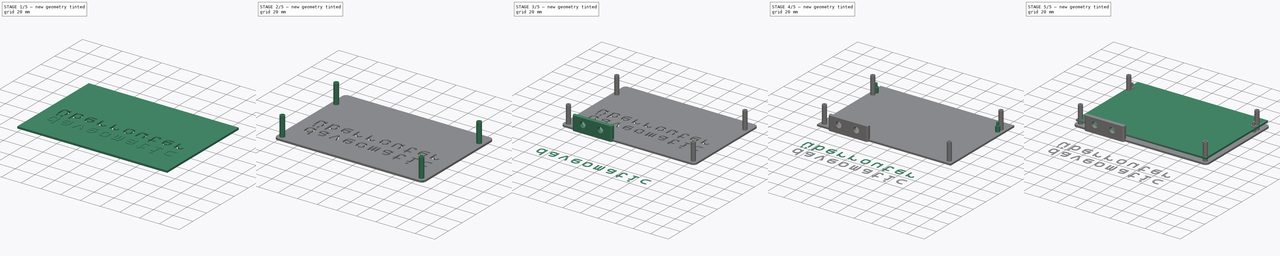
[diagram: build sequence overview — one tinted view per stage of 5, left to right]
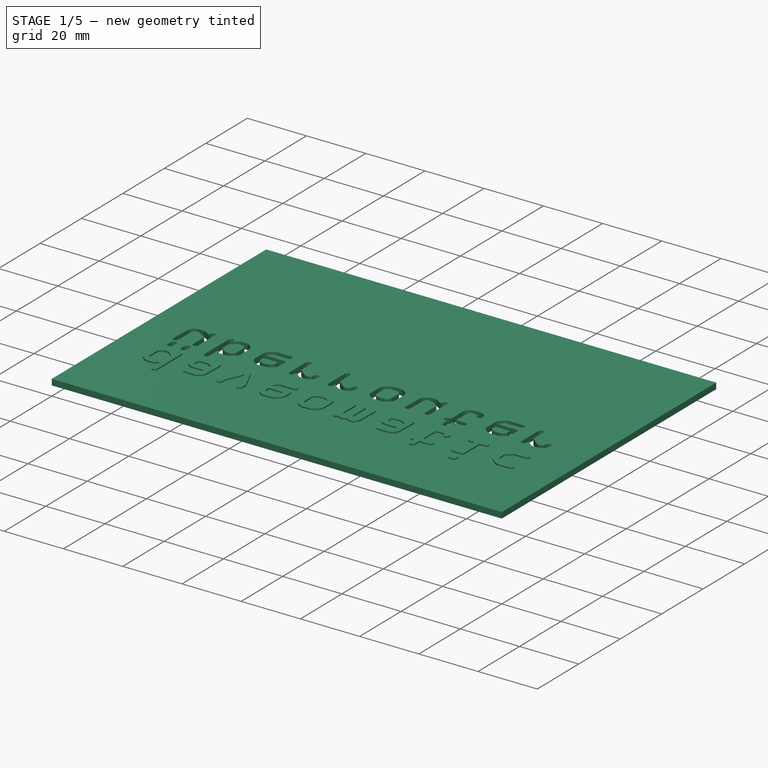
[diagram: stage 1 of 5 — iso view after this stage's code; geometry added in this stage tinted green]
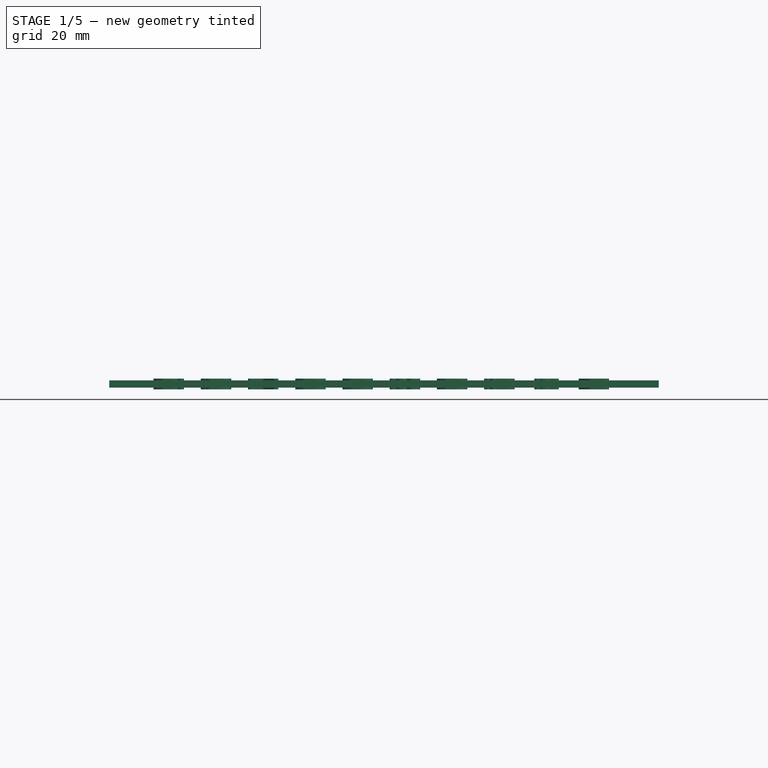
[diagram: stage 1 of 5 — front view after this stage's code; geometry added in this stage tinted green]
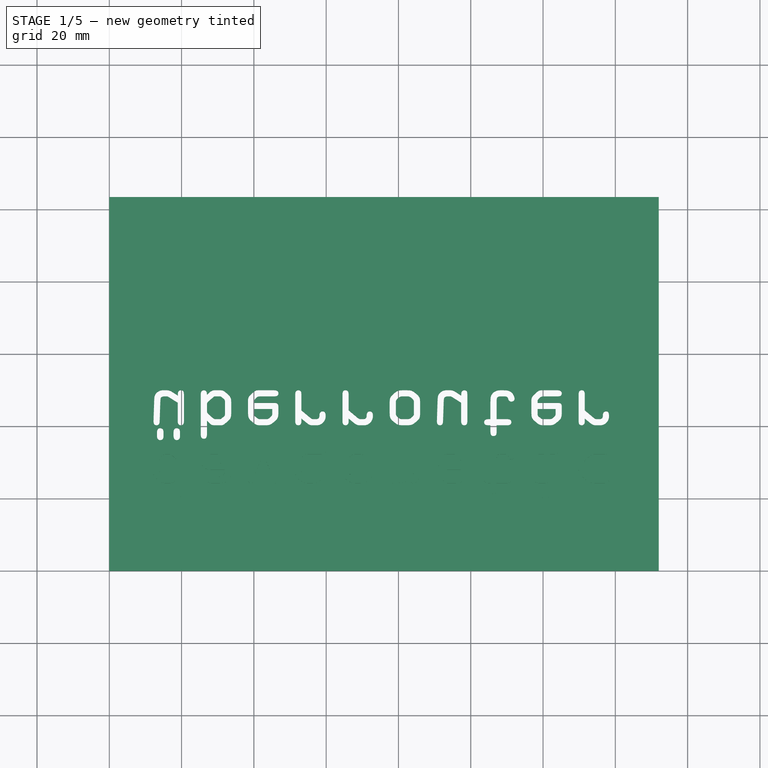
[diagram: stage 1 of 5 — top view after this stage's code; geometry added in this stage tinted green]
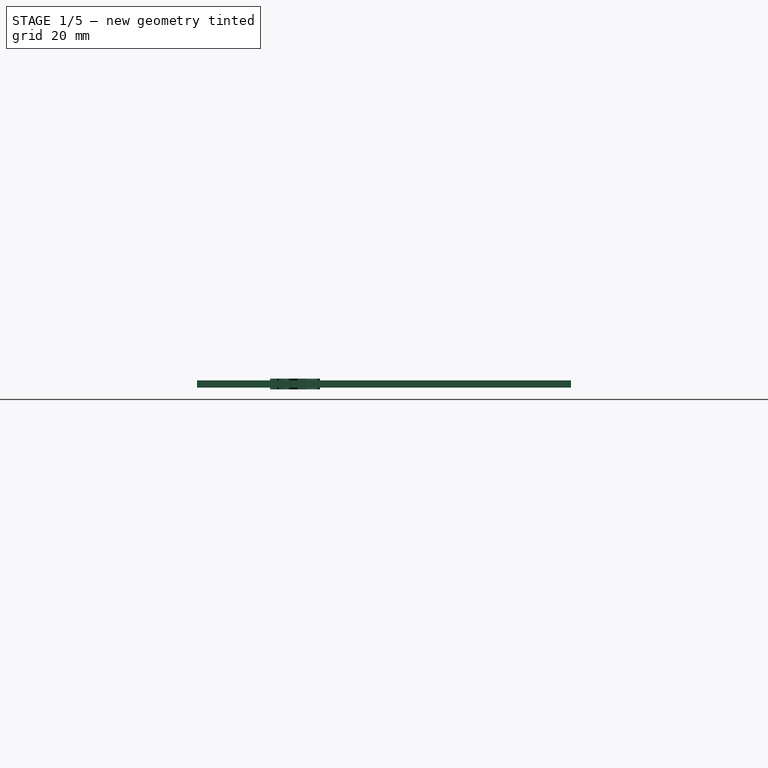
[diagram: stage 1 of 5 — right view after this stage's code; geometry added in this stage tinted green]
FCSTD DOCUMENT  (FreeCAD 0.16R6706 (Git))
Label: router
License: All rights reserved
LicenseURL: http://en.wikipedia.org/wiki/All_rights_reserved
objects: Sketcher::SketchObject×7, PartDesign::Pad×6, Part::Box×4, Part::Part2DObjectPython×4, PartDesign::Pocket×3, PartDesign::Fillet×3, App::DocumentObjectGroup×3, Part::Extrusion×3, Part::Cut×2
note: 41 computed .brp shape members not serialized (recipe doc carries the construction recipe); baked Part::Feature solids carry a one-line shape summary decoded from their .brp

FEATURE [Part::Box] Box002  label="top-"
  Height = 2
  Length = 152
  Width = 103.45
FEATURE [Part::Part2DObjectPython] ShapeString002  label="daveomatic001"  # Draft 2D object (typed FeaturePython)
  FontFile = /Volumes/storage<userpath>/Desktop/OCRAStd.otf
  Placement = pos=(10,34,2.5) rot=(1,0,0;3.14159rad)
  Size = 7
  String = daveomatic
  Tracking = 0
FEATURE [Part::Part2DObjectPython] ShapeString003  label="uber router001"  # Draft 2D object (typed FeaturePython)
  FontFile = /Volumes/storage<userpath>/Desktop/OCRAStd.otf
  Placement = pos=(10,50,2.5) rot=(1,0,0;3.14159rad)
  Size = 7
  String = überrouter
  Tracking = 0
FEATURE [PartDesign::Pad] Pad005  label="uberpad"
  Length = 3
  Length2 = 100
  Placement = pos=(10,50,2.5) rot=(1,0,0;3.14159rad)
  Sketch = -> ShapeString003
  Type = 0
FEATURE [PartDesign::Pad] Pad006  label="davepad"
  Length = 3
  Length2 = 100
  Placement = pos=(10,34,2.5) rot=(1,0,0;3.14159rad)
  Sketch = -> ShapeString002
  Type = 0
FEATURE [App::DocumentObjectGroup] Group002  label="WiFi block"
  Group = -> [Box003,Pocket003,Fillet002]
FEATURE [Part::Cut] Cut
  Base = -> Box002
  Tool = -> Pad005
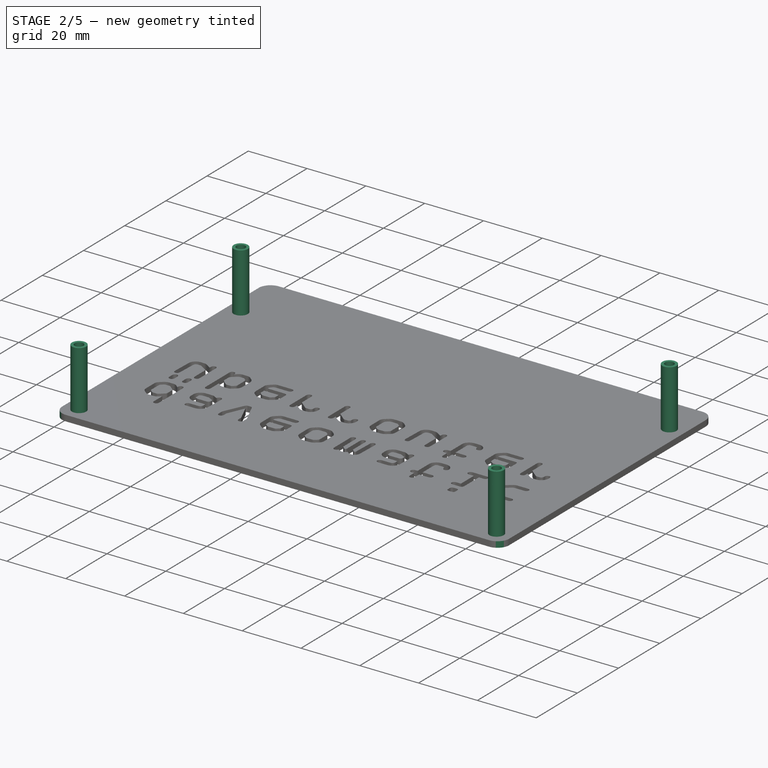
[diagram: stage 2 of 5 — iso view after this stage's code; geometry added in this stage tinted green]
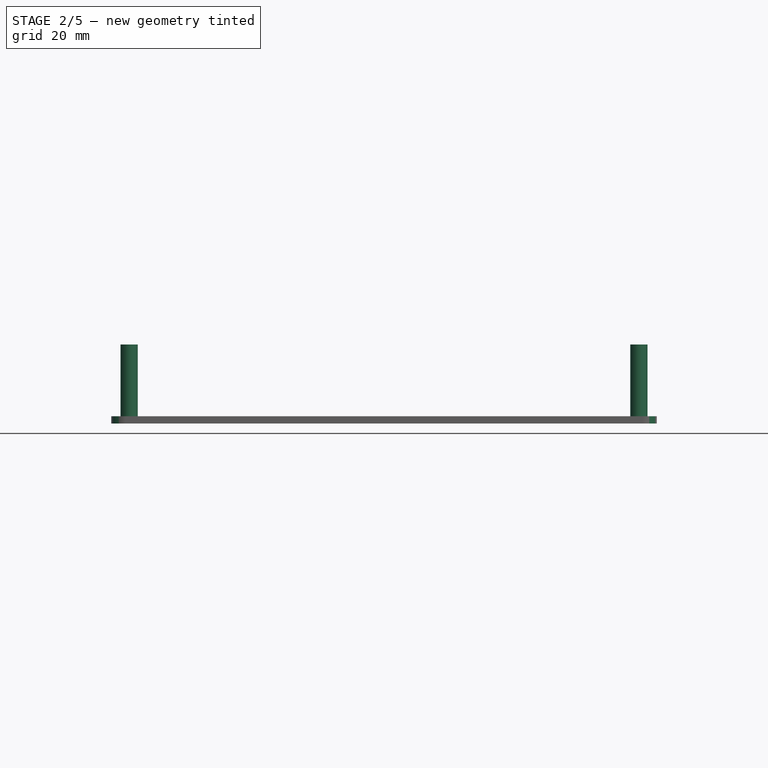
[diagram: stage 2 of 5 — front view after this stage's code; geometry added in this stage tinted green]
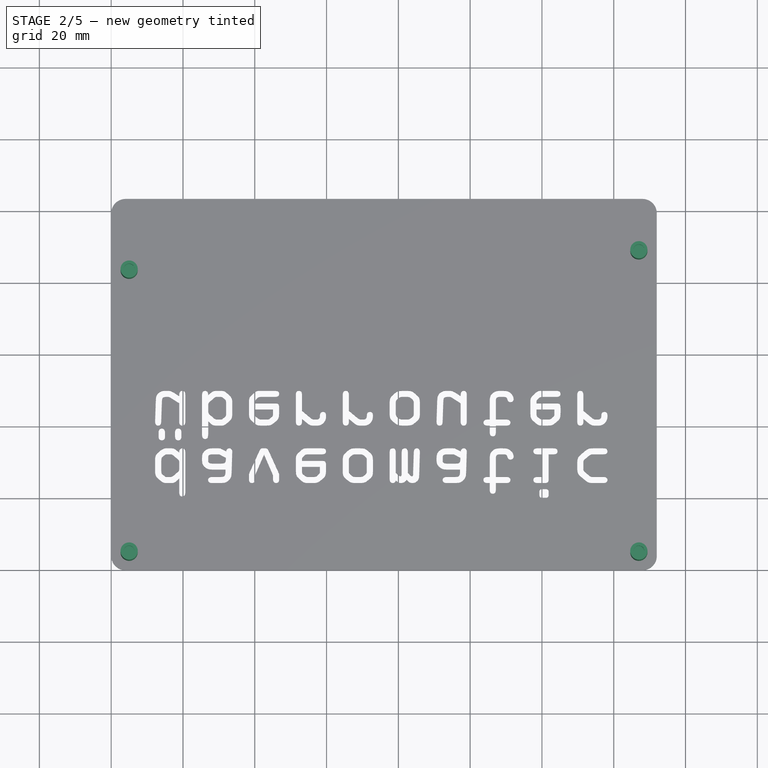
[diagram: stage 2 of 5 — top view after this stage's code; geometry added in this stage tinted green]
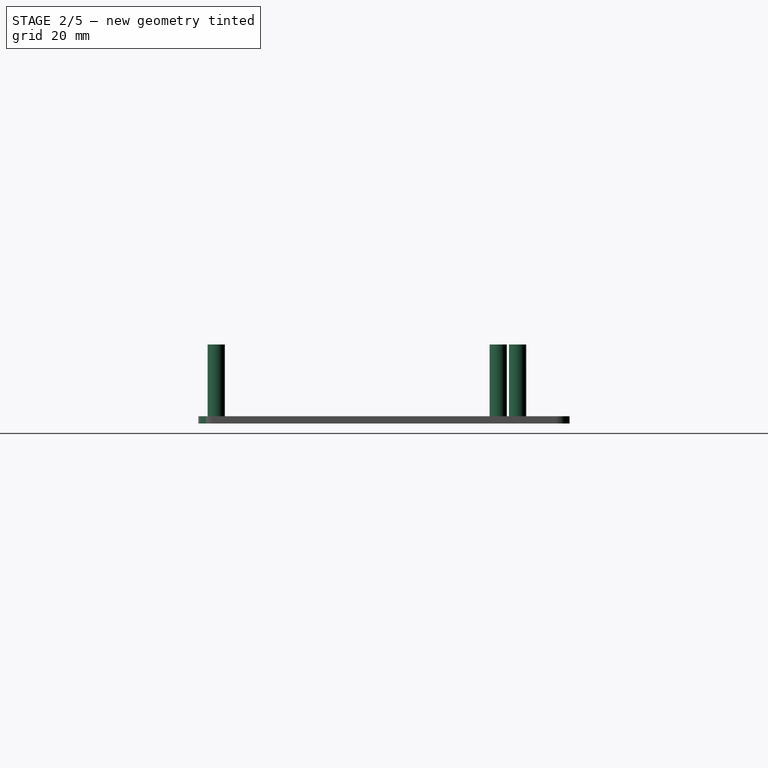
[diagram: stage 2 of 5 — right view after this stage's code; geometry added in this stage tinted green]
FEATURE [Part::Cut] Cut001
  Base = -> Cut
  Tool = -> Pad006
FEATURE [Part::Extrusion] Extrude001
  Base = -> Sketch007
  Dir = (0,0,16)
  Solid = true
FEATURE [Sketcher::SketchObject] Sketch008
  Placement = pos=(0,0,17.99) rot=(0,0,1;0rad)
  sketch-geometry (8):
    g0: Circle CenterX=5 CenterY=5 CenterZ=0 NormalX=0 NormalY=0 NormalZ=1 Radius=1.5
    g1: Circle CenterX=5 CenterY=83.58 CenterZ=0 NormalX=0 NormalY=0 NormalZ=1 Radius=1.5
    g2: Circle CenterX=147 CenterY=88.95 CenterZ=0 NormalX=0 NormalY=0 NormalZ=1 Radius=1.5
    g3: Circle CenterX=147 CenterY=5 CenterZ=0 NormalX=0 NormalY=0 NormalZ=1 Radius=1.5
    g4: Circle CenterX=5 CenterY=5 CenterZ=0 NormalX=0 NormalY=0 NormalZ=1 Radius=2.4
    g5: Circle CenterX=5 CenterY=83.56 CenterZ=0 NormalX=0 NormalY=0 NormalZ=1 Radius=2.4
    g6: Circle CenterX=147 CenterY=88.95 CenterZ=0 NormalX=0 NormalY=0 NormalZ=1 Radius=2.4
    g7: Circle CenterX=147 CenterY=5 CenterZ=0 NormalX=0 NormalY=0 NormalZ=1 Radius=2.4
  constraints (24):
    c: Equal(g0,g1)
    c: Equal(g1,g2)
    c: Equal(g2,g3)
    c: Radius(g0) = 1.5
    c: DistanceY(g0) = 5
    c: DistanceX(g0) = 5
    c: DistanceX(g1) = 5
    c: DistanceY(g3) = 5
    c: DistanceX(g3) = 147
    c: DistanceX(g2) = 147
    c: Distance(g0,g1) = 78.58
    c: Distance(g2,g3) = 83.95
    c: Equal(g4,g5)
    c: Equal(g5,g6)
    c: Equal(g6,g7)
    c: Radius(g4) = 2.4
    c: DistanceX(g4) = 5
    c: DistanceX(g5) = 5
    c: Distance(g4,g5) = 78.56
    c: DistanceX(g7) = 147
    c: DistanceX(g6) = 147
    c: Distance(g7,g6) = 83.95
    c: DistanceY(g7) = 5
    c: DistanceY(g4) = 5
FEATURE [Part::Extrusion] Extrude002
  Base = -> Sketch008
  Dir = (0,0,4)
  Solid = true
FEATURE [PartDesign::Fillet] Fillet003
  Base = -> Cut001 [Edge6,Edge1,Edge428,Edge3]
  Radius = 4
FEATURE [App::DocumentObjectGroup] Group001  label="top"
  Group = -> [Cut001,Sketch007,Extrude,Extrude001,Extrude002,Fillet003,Group002]
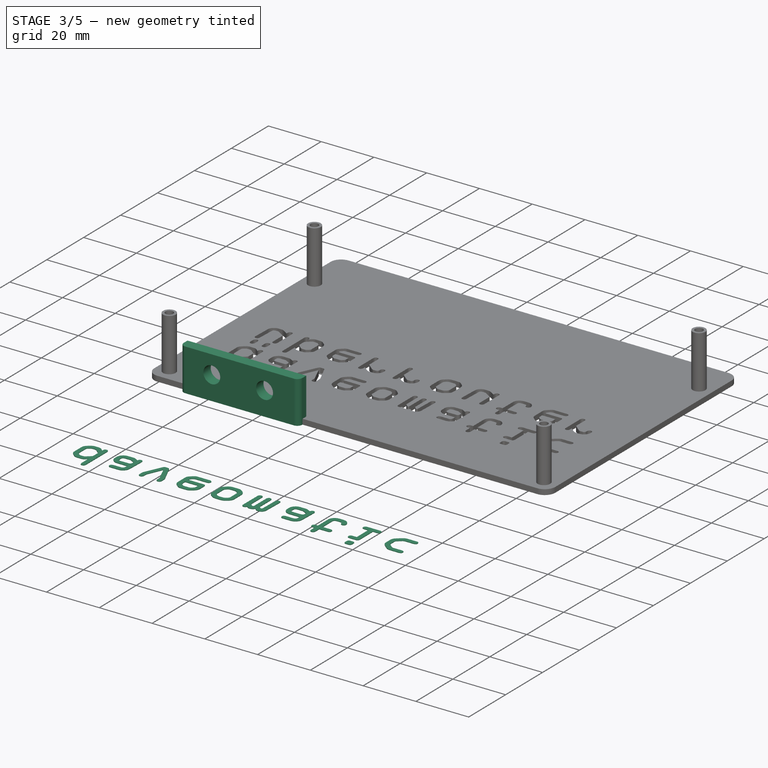
[diagram: stage 3 of 5 — iso view after this stage's code; geometry added in this stage tinted green]
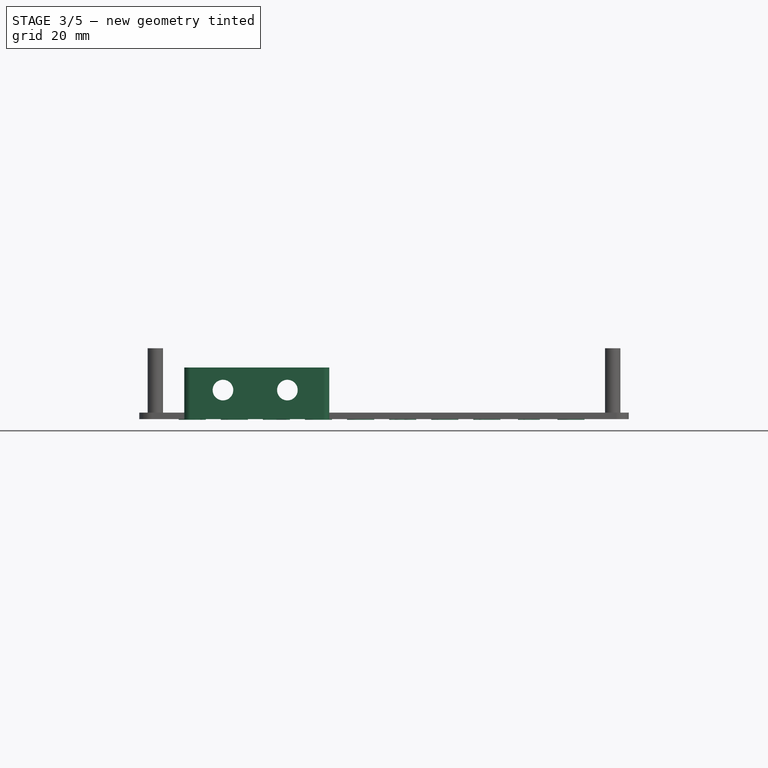
[diagram: stage 3 of 5 — front view after this stage's code; geometry added in this stage tinted green]
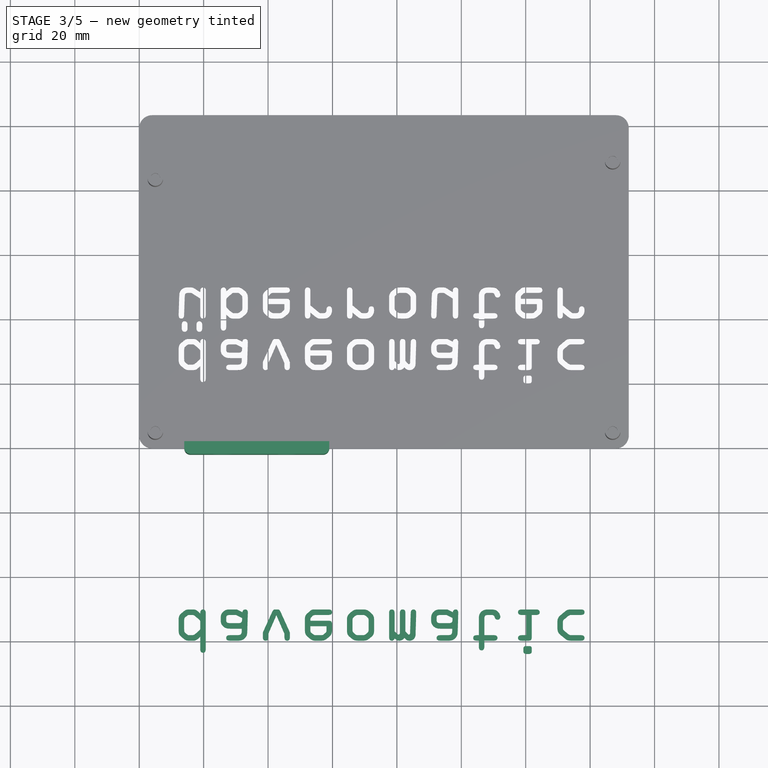
[diagram: stage 3 of 5 — top view after this stage's code; geometry added in this stage tinted green]
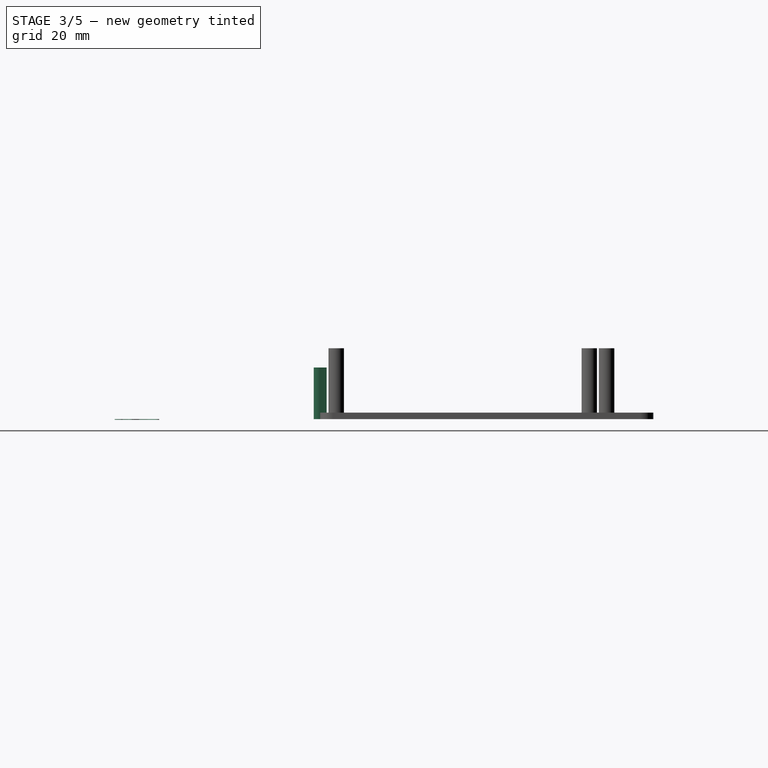
[diagram: stage 3 of 5 — right view after this stage's code; geometry added in this stage tinted green]
FEATURE [App::DocumentObjectGroup] Group  label="bottom"
  Group = -> [Box001,Pad,Pad001,Fillet]
FEATURE [Part::Part2DObjectPython] ShapeString  label="daveomatic"  # Draft 2D object (typed FeaturePython)
  FontFile = /Volumes/storage<userpath>/Desktop/OCRAStd.otf
  Placement = pos=(10,-50,0) rot=(1,0,0;3.14159rad)
  Size = 7
  String = daveomatic
  Tracking = 0
FEATURE [Part::Part2DObjectPython] ShapeString001  label="uber router"  # Draft 2D object (typed FeaturePython)
  FontFile = /Volumes/storage<userpath>/Desktop/OCRAStd.otf
  Placement = pos=(10,-33,0) rot=(1,0,0;3.14159rad)
  Size = 7
  String = überrouter
  Tracking = 0
FEATURE [Part::Box] Box003  label="wiFi"
  Height = 16
  Length = 45
  Placement = pos=(14,-2,0) rot=(0,0,1;0rad)
  Width = 4
FEATURE [Sketcher::SketchObject] Sketch006
  Placement = pos=(14,-2,0) rot=(1,0,0;1.5708rad)
  Support = -> Box003 [Face3]
  sketch-geometry (2):
    g0: Circle CenterX=12 CenterY=9 CenterZ=0 NormalX=0 NormalY=0 NormalZ=1 Radius=3.2
    g1: Circle CenterX=32 CenterY=9 CenterZ=0 NormalX=0 NormalY=0 NormalZ=1 Radius=3.2
  constraints (6):
    c: Radius(g0) = 3.2
    c: Equal(g0,g1)
    c: DistanceX(g0) = 12
    c: Distance(g0,g1) = 20
    c: DistanceY(g0) = 9
    c: DistanceY(g1) = 9
FEATURE [PartDesign::Pocket] Pocket003
  Length = 5
  Placement = pos=(14,-2,0) rot=(0,0,1;0rad)
  Sketch = -> Sketch006
  Type = 0
FEATURE [PartDesign::Fillet] Fillet002
  Base = -> Pocket003 [Edge1,Edge6]
  Placement = pos=(14,-2,0) rot=(0,0,1;0rad)
  Radius = 1.9
FEATURE [PartDesign::Pad] Pad004
  Length = 0.21
  Length2 = 100
  Placement = pos=(10,-50,0) rot=(1,0,0;3.14159rad)
  Sketch = -> ShapeString
  Type = 0
FEATURE [Sketcher::SketchObject] Sketch007
  Placement = pos=(0,0,1.99) rot=(0,0,1;0rad)
  sketch-geometry (4):
    g0: Circle CenterX=5 CenterY=5 CenterZ=0 NormalX=0 NormalY=0 NormalZ=1 Radius=2.4
    g1: Circle CenterX=5 CenterY=83.56 CenterZ=0 NormalX=0 NormalY=0 NormalZ=1 Radius=2.4
    g2: Circle CenterX=147 CenterY=88.95 CenterZ=0 NormalX=0 NormalY=0 NormalZ=1 Radius=2.4
    g3: Circle CenterX=147 CenterY=5 CenterZ=0 NormalX=0 NormalY=0 NormalZ=1 Radius=2.4
  constraints (12):
    c: Radius(g0) = 2.4
    c: DistanceY(g0) = 5
    c: DistanceX(g0) = 5
    c: DistanceX(g1) = 5
    c: Distance(g1,g0) = 78.56
    c: Equal(g0,g1)
    c: Equal(g1,g2)
    c: Equal(g2,g3)
    c: DistanceX(g2) = 147
    c: DistanceY(g3) = 5
    c: DistanceX(g3) = 147
    c: Distance(g2,g3) = 83.95
FEATURE [Part::Extrusion] Extrude
  Base = -> Sketch007
  Dir = (0,0,16)
  Solid = true
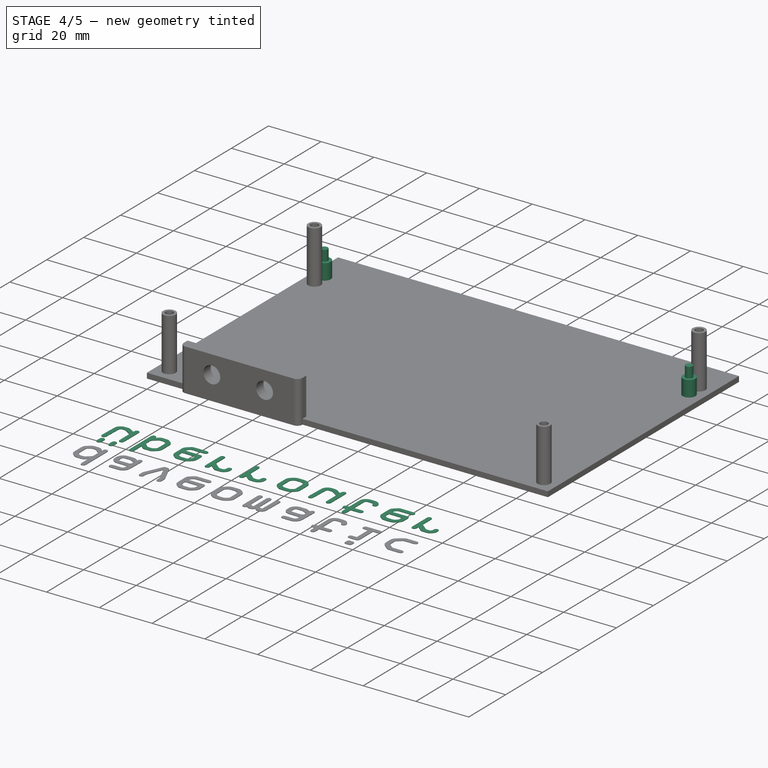
[diagram: stage 4 of 5 — iso view after this stage's code; geometry added in this stage tinted green]
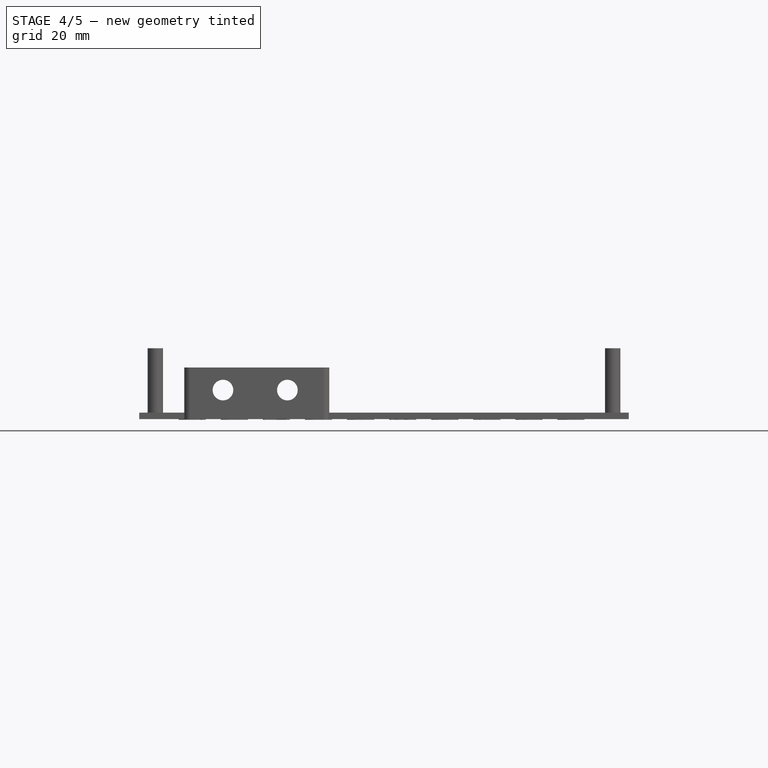
[diagram: stage 4 of 5 — front view after this stage's code; geometry added in this stage tinted green]
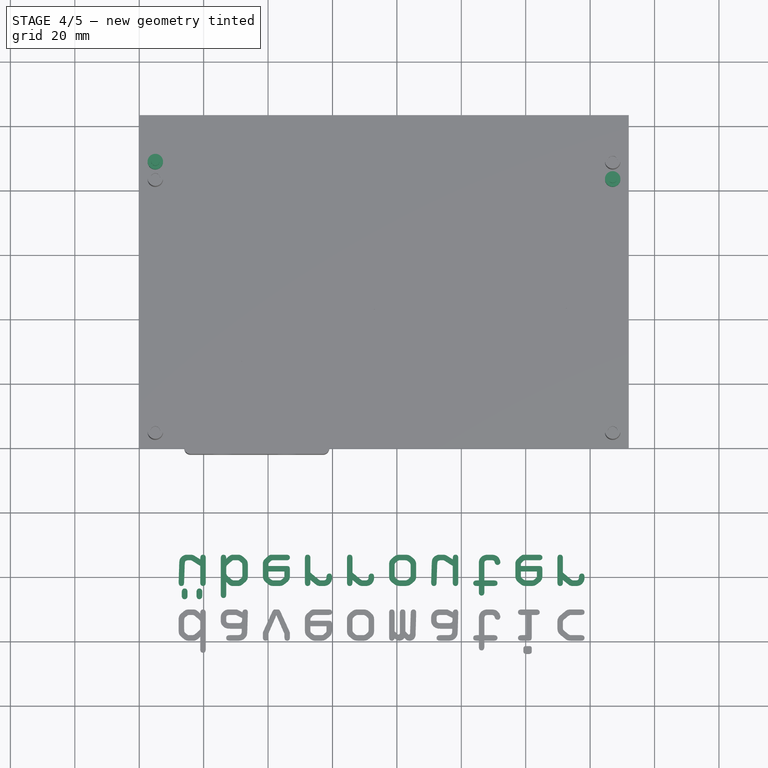
[diagram: stage 4 of 5 — top view after this stage's code; geometry added in this stage tinted green]
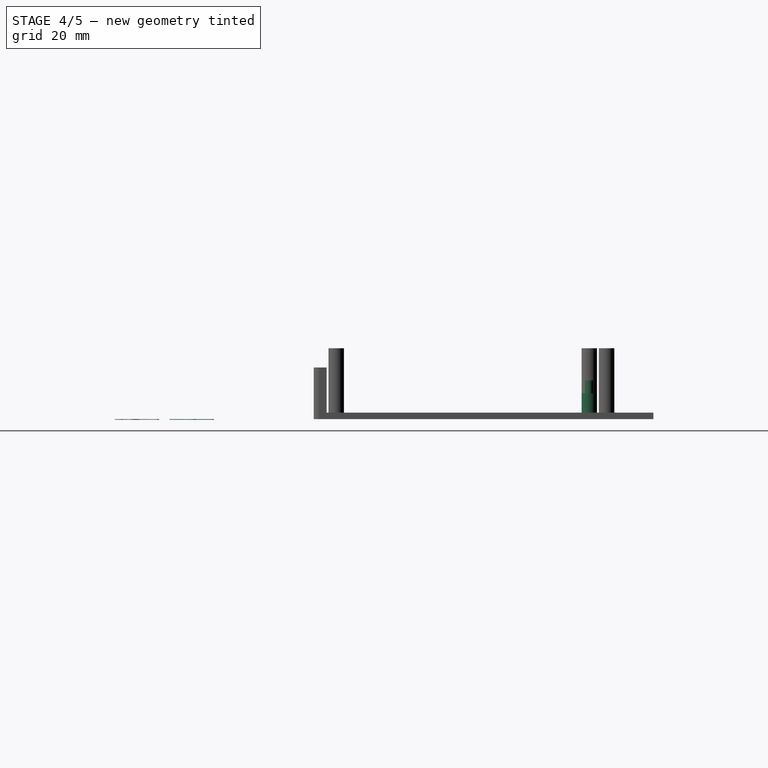
[diagram: stage 4 of 5 — right view after this stage's code; geometry added in this stage tinted green]
FEATURE [Part::Box] Box001  label="btm"
  Height = 2
  Length = 152
  Width = 103.45
FEATURE [Sketcher::SketchObject] Sketch002  label="holes-sk-btm"
  Placement = pos=(0,0,2) rot=(0,0,1;0rad)
  Support = -> Box001 [Face6]
  sketch-geometry (4):
    g0: Circle CenterX=5 CenterY=5 CenterZ=0 NormalX=0 NormalY=0 NormalZ=1 Radius=2.4
    g1: Circle CenterX=5 CenterY=88.95 CenterZ=0 NormalX=0 NormalY=0 NormalZ=1 Radius=2.4
    g2: Circle CenterX=147 CenterY=83.56 CenterZ=0 NormalX=0 NormalY=0 NormalZ=1 Radius=2.4
    g3: Circle CenterX=147 CenterY=5 CenterZ=0 NormalX=0 NormalY=0 NormalZ=1 Radius=2.4
  constraints (12):
    c: Radius(g0) = 2.4
    c: Equal(g0,g1)
    c: Equal(g1,g2)
    c: Equal(g2,g3)
    c: DistanceY(g-1,g0) = 5
    c: DistanceX(g-1,g0) = 5
    c: DistanceX(g-1,g1) = 5
    c: DistanceY(g-1,g3) = 5
    c: Distance(g1,g0) = 83.95
    c: Distance(g3,g2) = 78.56
    c: DistanceX(g3) = 147
    c: DistanceX(g2) = 147
FEATURE [PartDesign::Pad] Pad
  Length = 6
  Length2 = 100
  Sketch = -> Sketch002
  Type = 0
FEATURE [Sketcher::SketchObject] Sketch003  label="mnt-sk-btm"
  Placement = pos=(0,0,2) rot=(0,0,1;0rad)
  Support = -> Pad [Face3]
  sketch-geometry (4):
    g0: Circle CenterX=5 CenterY=5 CenterZ=0 NormalX=0 NormalY=0 NormalZ=1 Radius=1.3
    g1: Circle CenterX=5 CenterY=88.95 CenterZ=0 NormalX=0 NormalY=0 NormalZ=1 Radius=1.3
    g2: Circle CenterX=147 CenterY=83.56 CenterZ=0 NormalX=0 NormalY=0 NormalZ=1 Radius=1.3
    g3: Circle CenterX=147 CenterY=5 CenterZ=0 NormalX=0 NormalY=0 NormalZ=1 Radius=1.3
  constraints (12):
    c: Radius(g0) = 1.3
    c: Equal(g0,g1)
    c: Equal(g1,g2)
    c: Equal(g2,g3)
    c: DistanceY(g-1,g0) = 5
    c: DistanceX(g-1,g0) = 5
    c: DistanceX(g-1,g1) = 5
    c: DistanceY(g-1,g3) = 5
    c: Distance(g1,g0) = 83.95
    c: Distance(g3,g2) = 78.56
    c: DistanceX(g3) = 147
    c: DistanceX(g2) = 147
FEATURE [PartDesign::Pad] Pad001
  Length = 10
  Length2 = 100
  Sketch = -> Sketch003
  Type = 0
FEATURE [PartDesign::Pad] Pad003
  Length = 0.21
  Length2 = 100
  Placement = pos=(10,-33,0) rot=(1,0,0;3.14159rad)
  Sketch = -> ShapeString001
  Type = 0
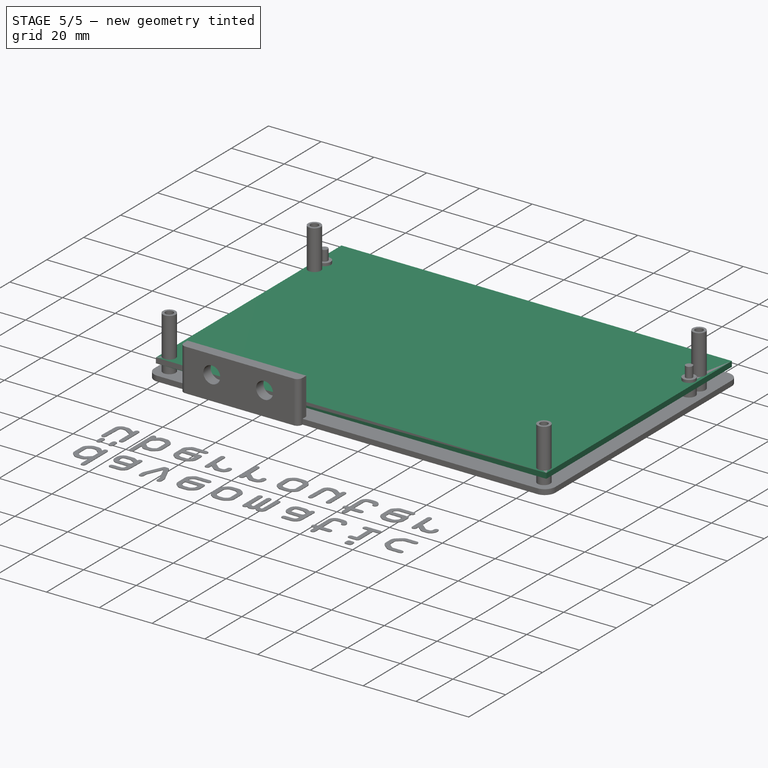
[diagram: stage 5 of 5 — iso view after this stage's code; geometry added in this stage tinted green]
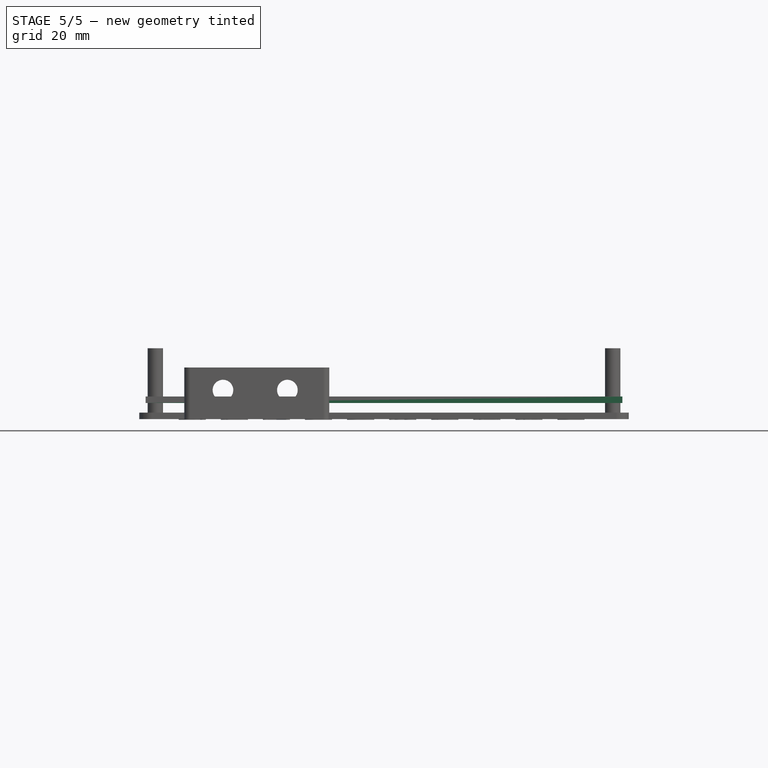
[diagram: stage 5 of 5 — front view after this stage's code; geometry added in this stage tinted green]
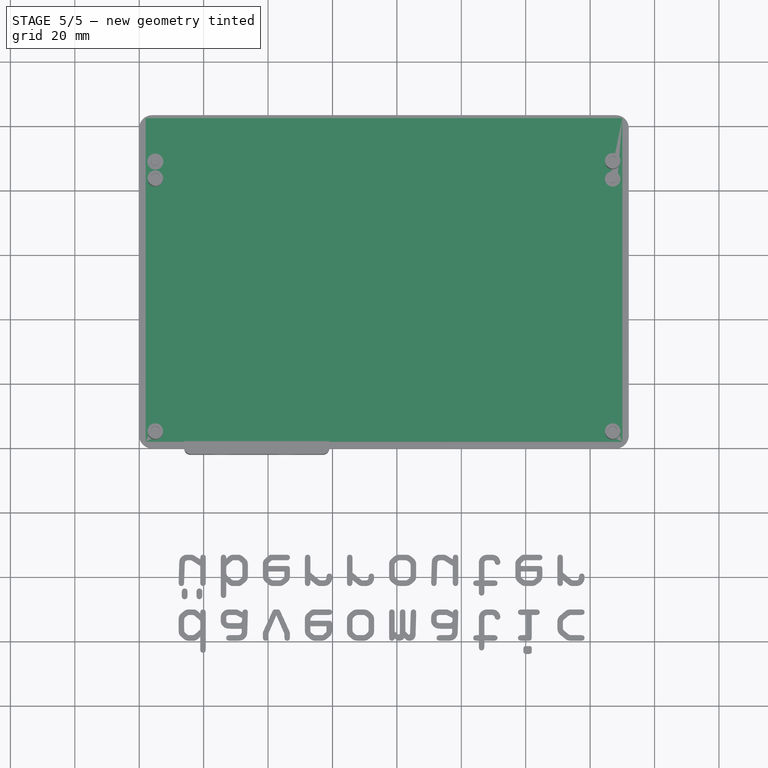
[diagram: stage 5 of 5 — top view after this stage's code; geometry added in this stage tinted green]
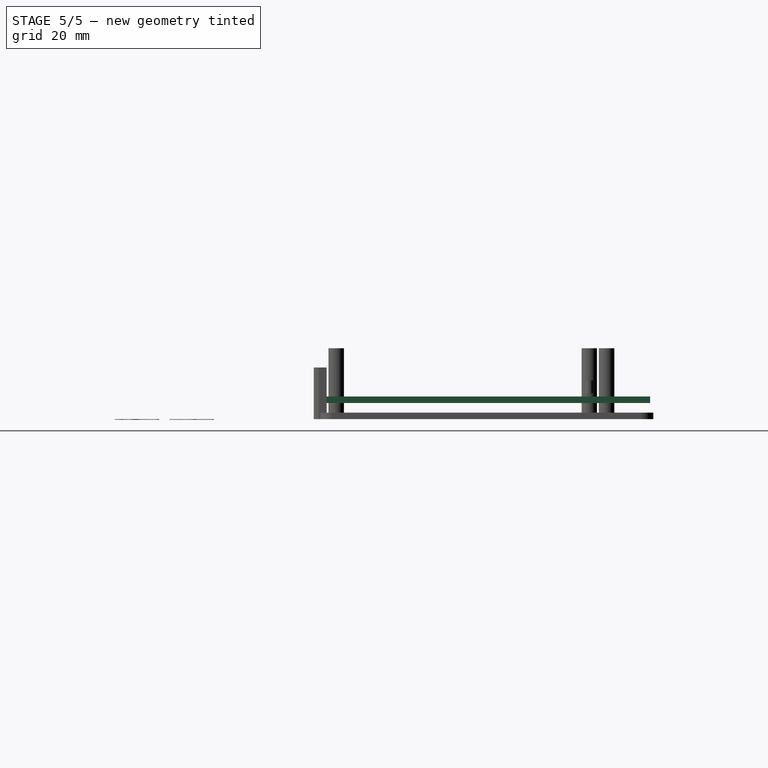
[diagram: stage 5 of 5 — right view after this stage's code; geometry added in this stage tinted green]
FEATURE [Part::Box] Box  label="board"
  Height = 2
  Length = 148
  Placement = pos=(2,2,5) rot=(0,0,1;0rad)
  Width = 100.45
FEATURE [Sketcher::SketchObject] Sketch  label="holes-sk"
  Placement = pos=(2,2,7) rot=(0,0,1;0rad)
  Support = -> Box [Face6]
  sketch-geometry (4):
    g0: Circle CenterX=3 CenterY=3 CenterZ=0 NormalX=0 NormalY=0 NormalZ=1 Radius=1.5
    g1: Circle CenterX=3 CenterY=86.95 CenterZ=0 NormalX=0 NormalY=0 NormalZ=1 Radius=1.5
    g2: Circle CenterX=145 CenterY=81.56 CenterZ=0 NormalX=0 NormalY=0 NormalZ=1 Radius=1.5
    g3: Circle CenterX=145 CenterY=3 CenterZ=0 NormalX=0 NormalY=0 NormalZ=1 Radius=1.5
  constraints (12):
    c: Radius(g0) = 1.5
    c: Equal(g0,g1)
    c: Equal(g1,g2)
    c: Equal(g2,g3)
    c: DistanceY(g-1,g0) = 3
    c: DistanceX(g-1,g0) = 3
    c: DistanceX(g-1,g1) = 3
    c: DistanceY(g-1,g3) = 3
    c: Distance(g1,g0) = 83.95
    c: Distance(g3,g2) = 78.56
    c: DistanceX(g3) = 145
    c: DistanceX(g2) = 145
FEATURE [PartDesign::Pocket] Pocket  label="holes"
  Length = 5
  Placement = pos=(2,2,5) rot=(0,0,1;0rad)
  Sketch = -> Sketch
  Type = 0
FEATURE [Sketcher::SketchObject] Sketch001  label="standoff-sk"
  Placement = pos=(2,2,7) rot=(0,0,1;0rad)
  Support = -> Pocket [Face3]
  sketch-geometry (1):
    g0: Circle CenterX=3 CenterY=86.95 CenterZ=0 NormalX=0 NormalY=0 NormalZ=1 Radius=2.5
  constraints (3):
    c: Radius(g0) = 2.5
    c: DistanceX(g-1,g0) = 3
    c: DistanceY(g0) = 86.95
FEATURE [PartDesign::Pocket] Pocket001  label="standoff"
  Length = 0.1
  Placement = pos=(2,2,5) rot=(0,0,1;0rad)
  Sketch = -> Sketch001
  Type = 0
FEATURE [PartDesign::Fillet] Fillet
  Base = -> Pad001 [Edge1,Edge6,Edge15,Edge3]
  Radius = 4
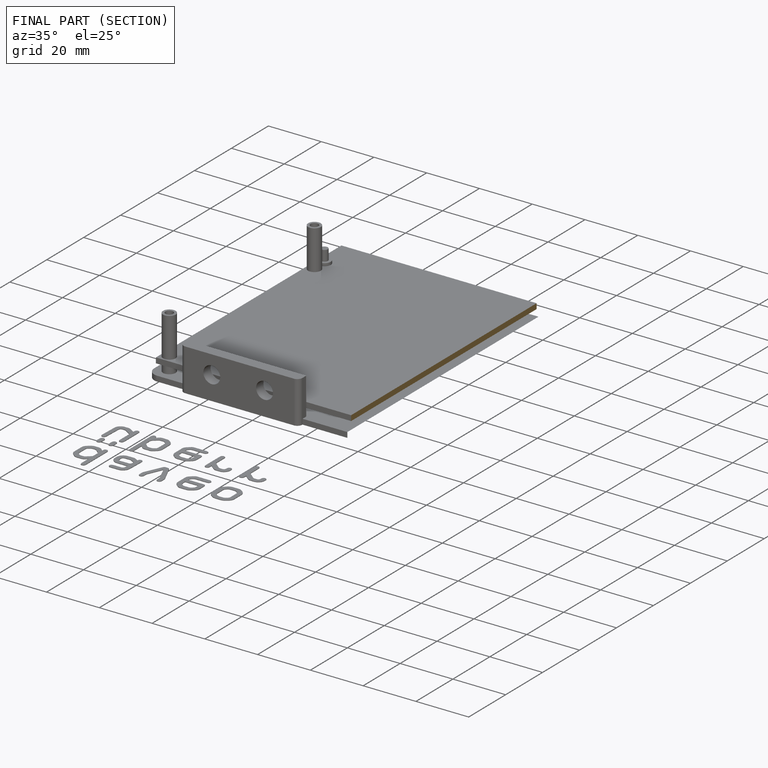
[diagram: finished part — half-section view (interior)]
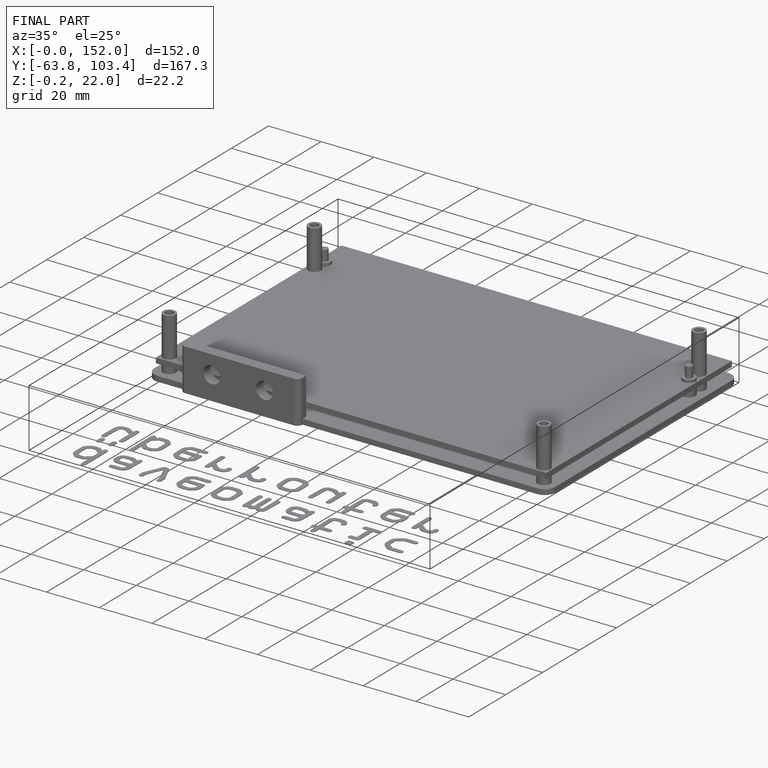
[diagram: finished part — iso view with bounding-box wireframe]
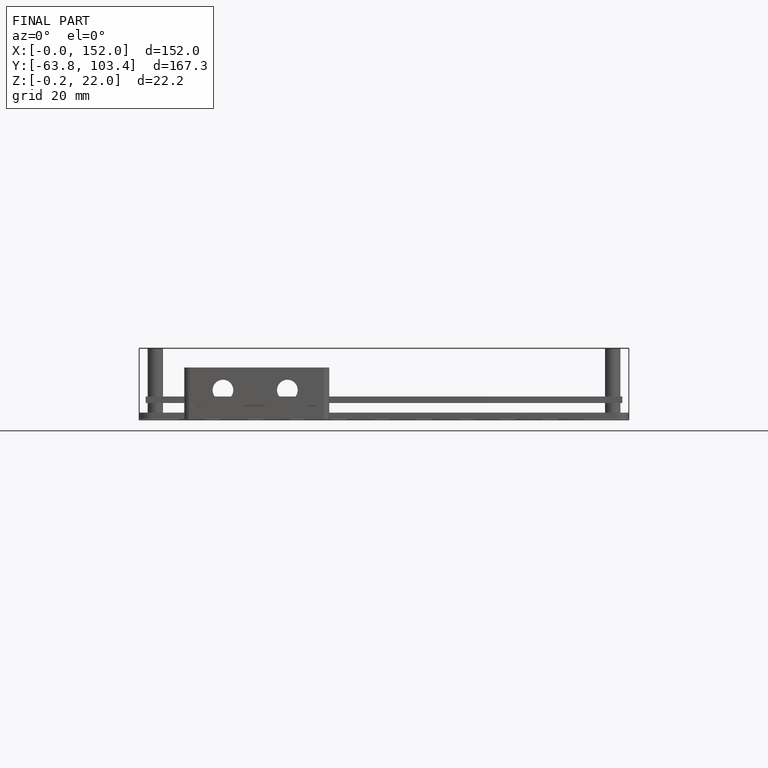
[diagram: finished part — front view with bounding-box wireframe]
